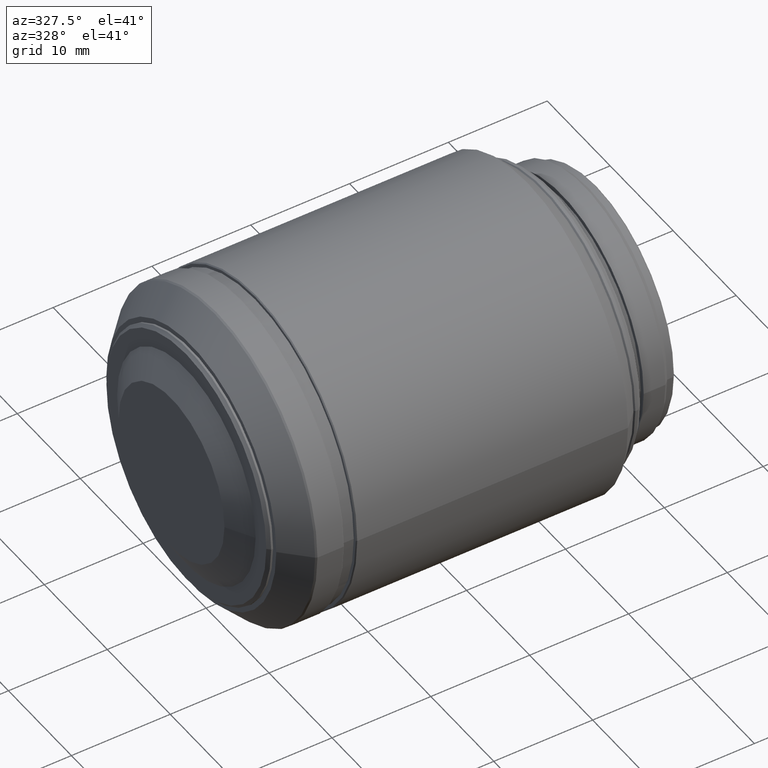
[diagram: clean part render]
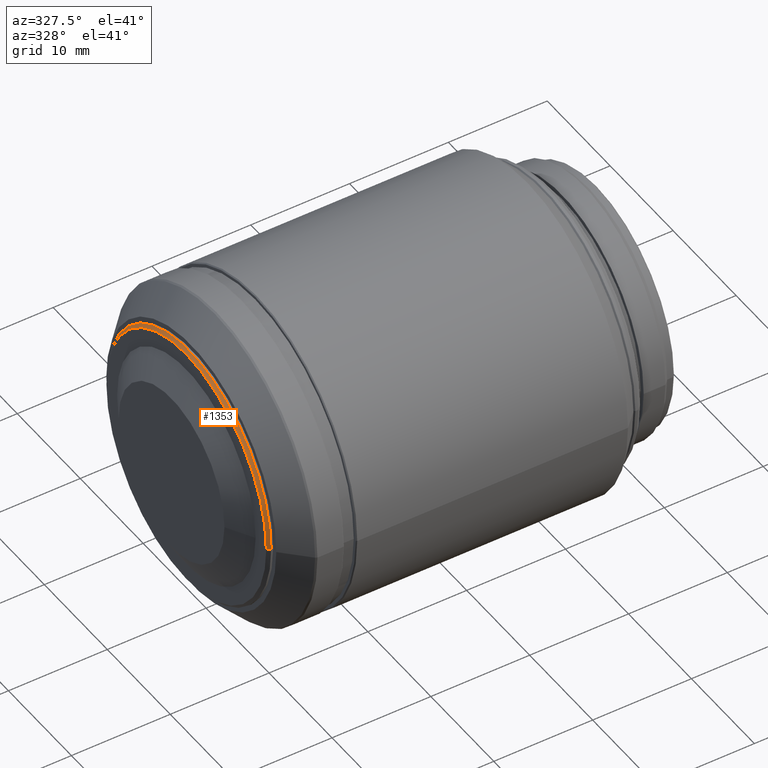
[diagram: same view with one face highlighted and labeled with its STEP entity id]
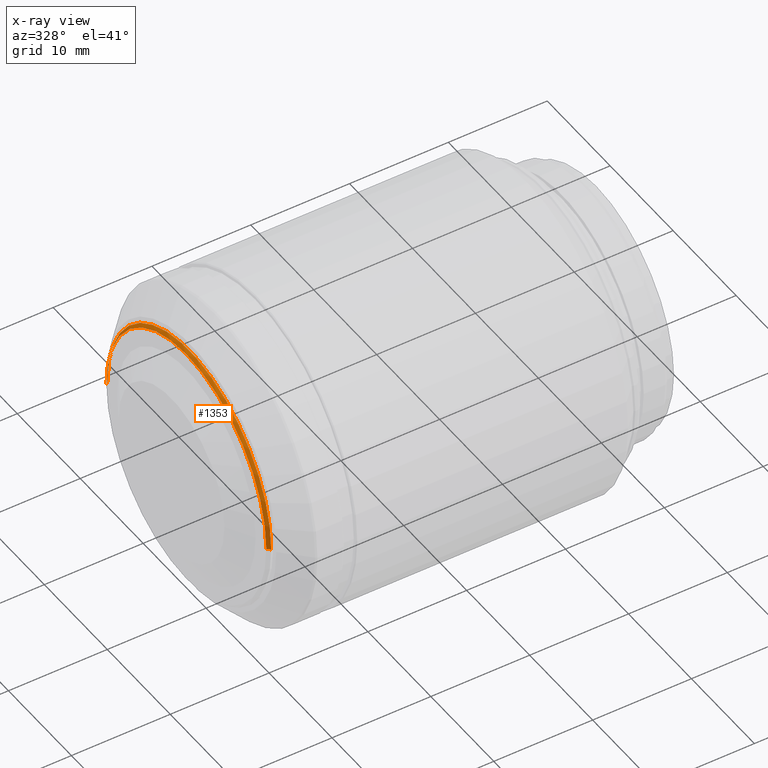
[diagram: x-ray of the same camera — body ghosted, the highlighted face saturated]
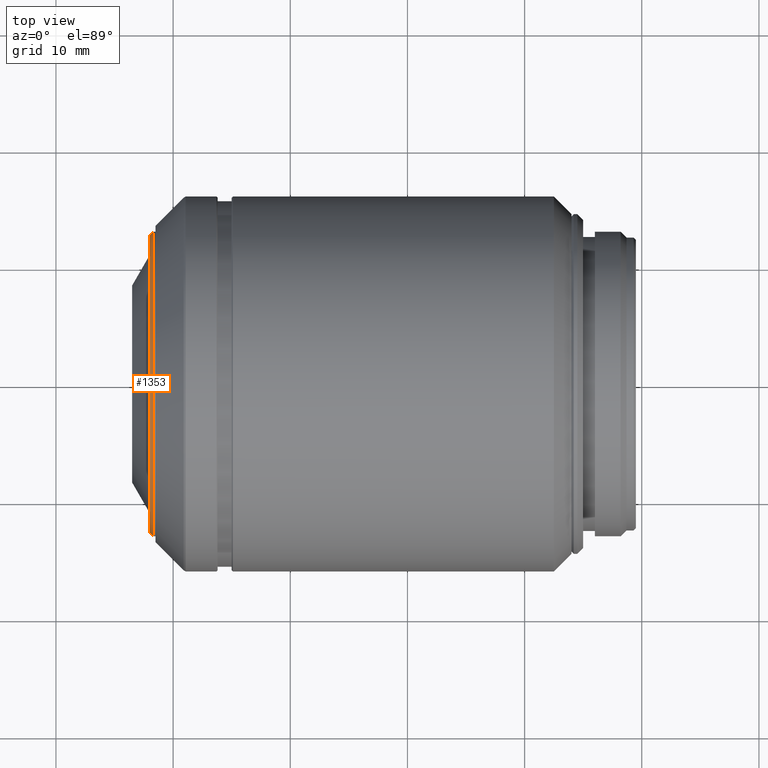
[diagram: same view with one face highlighted and labeled with its STEP entity id]
A machine part, auxiliary view. The second image highlights one B-rep face of the part: STEP entity #1353.
The next image is the same camera in x-ray: the body ghosted, the highlighted face saturated — about 0% of this face is hidden behind the body in this view.
A second angle (top view) of the same face is appended — the face is thin or edge-on in the first view.
In plain terms, the highlighted conical surface has half-angle 45 deg.
Its self-contained STEP definition (entity closure, byte-faithful):
#117 = ORIENTED_EDGE ( 'NONE', *, *, #1291, .F. ) ;
#157 = VECTOR ( 'NONE', #680, 1000.000000000000000 ) ;
#172 = VERTEX_POINT ( 'NONE', #1502 ) ;
#187 = VERTEX_POINT ( 'NONE', #210 ) ;
#210 = CARTESIAN_POINT ( 'NONE',  ( -8.239867999999999526, -12.69999999999999929, 0.000000000000000000 ) ) ;
#263 = EDGE_CURVE ( 'NONE', #187, #514, #1336, .T. ) ;
#267 = DIRECTION ( 'NONE',  ( -1.365923996832131609E-16, 1.000000000000000000, 0.000000000000000000 ) ) ;
#272 = CARTESIAN_POINT ( 'NONE',  ( -7.939867999999998815, -5.194586575847510043E-15, 0.000000000000000000 ) ) ;
#329 = CARTESIAN_POINT ( 'NONE',  ( -7.939867999999998815, 13.00000000000000000, -1.592040838891559884E-15 ) ) ;
#447 = LINE ( 'NONE', #329, #157 ) ;
#473 = EDGE_CURVE ( 'NONE', #172, #187, #773, .T. ) ;
#514 = VERTEX_POINT ( 'NONE', #1521 ) ;
#608 = CARTESIAN_POINT ( 'NONE',  ( -7.939867999999998815, -13.00000000000000000, 0.000000000000000000 ) ) ;
#625 = FACE_OUTER_BOUND ( 'NONE', #1072, .T. ) ;
#640 = CARTESIAN_POINT ( 'NONE',  ( -7.939867999999998815, -5.194586575847510043E-15, 0.000000000000000000 ) ) ;
#680 = DIRECTION ( 'NONE',  ( 0.7071067811865470176, 0.7071067811865480168, -8.659560562354939021E-17 ) ) ;
#773 = CIRCLE ( 'NONE', #1520, 12.69999999999999929 ) ;
#792 = CONICAL_SURFACE ( 'NONE', #989, 13.00000000000000000, 0.7853981633974490562 ) ;
#877 = DIRECTION ( 'NONE',  ( 1.000000000000000000, 1.415423776414539960E-16, 0.000000000000000000 ) ) ;
#974 = DIRECTION ( 'NONE',  ( 1.334402673828313093E-16, -1.000000000000000000, 0.000000000000000000 ) ) ;
#983 = CARTESIAN_POINT ( 'NONE',  ( -8.239867999999999526, -5.237049289139949427E-15, 0.000000000000000000 ) ) ;
#989 = AXIS2_PLACEMENT_3D ( 'NONE', #640, #1101, #974 ) ;
#1064 = CIRCLE ( 'NONE', #1214, 13.00000000000000000 ) ;
#1072 = EDGE_LOOP ( 'NONE', ( #1499, #117, #1185, #1402 ) ) ;
#1101 = DIRECTION ( 'NONE',  ( 1.000000000000000000, 1.415423776414539960E-16, 0.000000000000000000 ) ) ;
#1185 = ORIENTED_EDGE ( 'NONE', *, *, #1481, .F. ) ;
#1214 = AXIS2_PLACEMENT_3D ( 'NONE', #272, #1350, #1356 ) ;
#1291 = EDGE_CURVE ( 'NONE', #1325, #514, #1064, .T. ) ;
#1325 = VERTEX_POINT ( 'NONE', #1362 ) ;
#1336 = LINE ( 'NONE', #608, #1519 ) ;
#1350 = DIRECTION ( 'NONE',  ( 1.000000000000000000, 1.415423776414539960E-16, 0.000000000000000000 ) ) ;
#1353 = ADVANCED_FACE ( 'NONE', ( #625 ), #792, .T. ) ;
#1356 = DIRECTION ( 'NONE',  ( -1.334402673828313093E-16, 1.000000000000000000, 0.000000000000000000 ) ) ;
#1362 = CARTESIAN_POINT ( 'NONE',  ( -7.939867999999998815, 13.00000000000000000, -1.592040838891559884E-15 ) ) ;
#1402 = ORIENTED_EDGE ( 'NONE', *, *, #473, .T. ) ;
#1453 = DIRECTION ( 'NONE',  ( 0.7071067811865470176, -0.7071067811865480168, 0.000000000000000000 ) ) ;
#1481 = EDGE_CURVE ( 'NONE', #172, #1325, #447, .T. ) ;
#1499 = ORIENTED_EDGE ( 'NONE', *, *, #263, .T. ) ;
#1502 = CARTESIAN_POINT ( 'NONE',  ( -8.239867999999999526, 12.69999999999999929, -1.555301434917139813E-15 ) ) ;
#1519 = VECTOR ( 'NONE', #1453, 1000.000000000000000 ) ;
#1520 = AXIS2_PLACEMENT_3D ( 'NONE', #983, #877, #267 ) ;
#1521 = CARTESIAN_POINT ( 'NONE',  ( -7.939867999999998815, -13.00000000000000000, 0.000000000000000000 ) ) ;